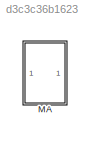
MODEL slx_d3c3c36b1623
KIND model
CONFIG AbsTol = auto
CONFIG EnableMultiTasking = off
CONFIG FixedStep = 0.01
CONFIG MaxStep = auto
CONFIG MinStep = auto
CONFIG RelTol = 1e-3
CONFIG SampleTimeConstraint = Unconstrained
CONFIG SolverName = FixedStepDiscrete
CONFIG StartTime = 0.0
CONFIG StopTime = 0.2
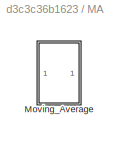
BLOCK [SubSystem] MA
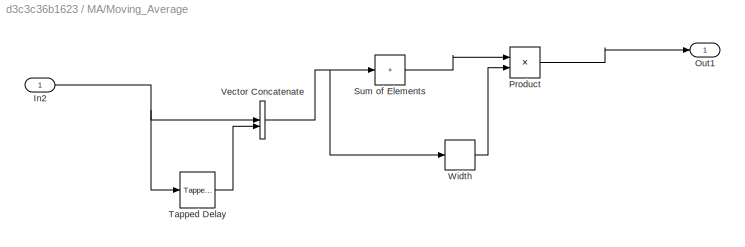
BLOCK [SubSystem] MA/Moving_Average
BLOCK [Inport] MA/Moving_Average/In2
BLOCK [Outport] MA/Moving_Average/Out1
BLOCK [Product] MA/Moving_Average/Product
  Inputs = */
BLOCK [Sum] MA/Moving_Average/Sum of Elements
  IconShape = rectangular
  Inputs = +
BLOCK [Reference] MA/Moving_Average/Tapped Delay  REF=simulink/Discrete/Tapped Delay
  SourceBlock = simulink/Discrete/Tapped Delay
  SourceType = Tapped Delay Line
BLOCK [Concatenate] MA/Moving_Average/Vector Concatenate
BLOCK [Width] MA/Moving_Average/Width
  AlwaysUseConstantSampleTime = off
  DataType = uint8
NET MA/Moving_Average/In2:1 -> MA/Moving_Average/Tapped Delay:1, MA/Moving_Average/Vector Concatenate:1
LINE MA/Moving_Average/Product:1 -> MA/Moving_Average/Out1:1
LINE MA/Moving_Average/Sum of Elements:1 -> MA/Moving_Average/Product:1
LINE MA/Moving_Average/Tapped Delay:1 -> MA/Moving_Average/Vector Concatenate:2
NET MA/Moving_Average/Vector Concatenate:1 -> MA/Moving_Average/Sum of Elements:1, MA/Moving_Average/Width:1
LINE MA/Moving_Average/Width:1 -> MA/Moving_Average/Product:2
note: NET lines group one-source signal fan-out (src -> all destinations, sorted); 1:1 wires keep LINE
